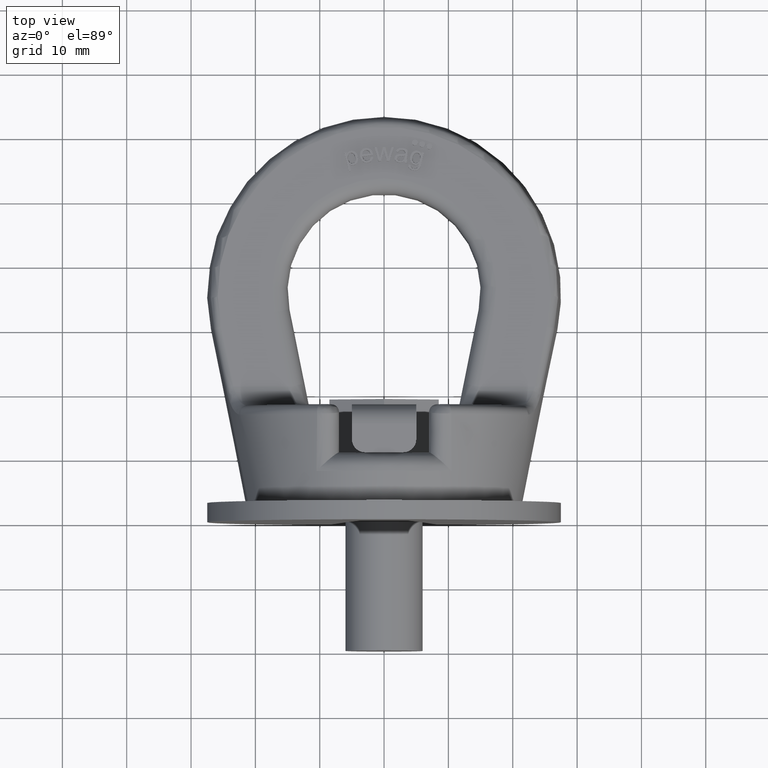
[diagram: clean part render]
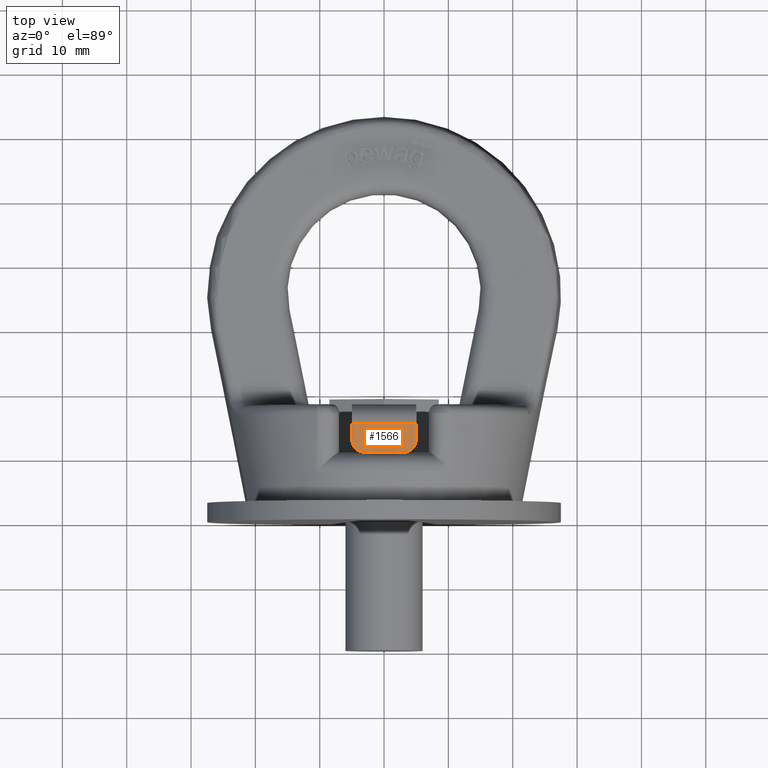
[diagram: same view with one face highlighted and labeled with its STEP entity id]
A machine part, top view. The second image highlights one B-rep face of the part: STEP entity #1566.
In plain terms, the highlighted planar face has unit normal (0, 0, -1).
Its self-contained STEP definition (entity closure, byte-faithful):
#1326=FACE_OUTER_BOUND('',#2110,.T.);
#1566=ADVANCED_FACE('',(#1326),#1695,.F.);
#1695=PLANE('',#5400);
#1781=CIRCLE('',#5398,2.);
#1782=CIRCLE('',#5399,2.);
#2110=EDGE_LOOP('',(#3829,#3830,#3831,#3832,#3833,#3834));
#2361=LINE('',#9636,#2697);
#2369=LINE('',#9658,#2705);
#2373=LINE('',#9667,#2709);
#2384=LINE('',#9701,#2720);
#2697=VECTOR('',#6151,1.);
#2705=VECTOR('',#6165,1.);
#2709=VECTOR('',#6171,1.);
#2720=VECTOR('',#6210,1.);
#3829=ORIENTED_EDGE('',*,*,#4839,.F.);
#3830=ORIENTED_EDGE('',*,*,#4863,.T.);
#3831=ORIENTED_EDGE('',*,*,#4829,.F.);
#3832=ORIENTED_EDGE('',*,*,#4862,.T.);
#3833=ORIENTED_EDGE('',*,*,#4843,.T.);
#3834=ORIENTED_EDGE('',*,*,#4864,.T.);
#4264=VERTEX_POINT('',#9637);
#4265=VERTEX_POINT('',#9638);
#4274=VERTEX_POINT('',#9657);
#4275=VERTEX_POINT('',#9659);
#4278=VERTEX_POINT('',#9666);
#4279=VERTEX_POINT('',#9668);
#4829=EDGE_CURVE('',#4264,#4265,#2361,.T.);
#4839=EDGE_CURVE('',#4274,#4275,#2369,.T.);
#4843=EDGE_CURVE('',#4279,#4278,#2373,.T.);
#4862=EDGE_CURVE('',#4264,#4279,#2384,.T.);
#4863=EDGE_CURVE('',#4274,#4265,#1781,.T.);
#4864=EDGE_CURVE('',#4278,#4275,#1782,.T.);
#5398=AXIS2_PLACEMENT_3D('',#9703,#6213,#6214);
#5399=AXIS2_PLACEMENT_3D('',#9704,#6215,#6216);
#5400=AXIS2_PLACEMENT_3D('',#9705,#6217,#6218);
#6151=DIRECTION('',(0.,-1.,0.));
#6165=DIRECTION('',(-1.,0.,0.));
#6171=DIRECTION('',(0.,-1.,0.));
#6210=DIRECTION('',(-1.,0.,0.));
#6213=DIRECTION('',(0.,0.,1.));
#6214=DIRECTION('',(-1.,0.,0.));
#6215=DIRECTION('',(0.,0.,1.));
#6216=DIRECTION('',(-1.,0.,0.));
#6217=DIRECTION('',(0.,0.,-1.));
#6218=DIRECTION('',(-1.,0.,0.));
#9636=CARTESIAN_POINT('',(5.,15.,21.5));
#9637=CARTESIAN_POINT('',(5.,15.,21.5));
#9638=CARTESIAN_POINT('',(5.,12.5,21.5));
#9657=CARTESIAN_POINT('',(3.,10.5,21.5));
#9658=CARTESIAN_POINT('',(5.,10.5,21.5));
#9659=CARTESIAN_POINT('',(-3.,10.5,21.5));
#9666=CARTESIAN_POINT('',(-5.,12.5,21.5));
#9667=CARTESIAN_POINT('',(-5.,15.,21.5));
#9668=CARTESIAN_POINT('',(-5.,15.,21.5));
#9701=CARTESIAN_POINT('',(5.,15.,21.5));
#9703=CARTESIAN_POINT('',(3.,12.5,21.5));
#9704=CARTESIAN_POINT('',(-3.,12.5,21.5));
#9705=CARTESIAN_POINT('',(5.,15.,21.5));